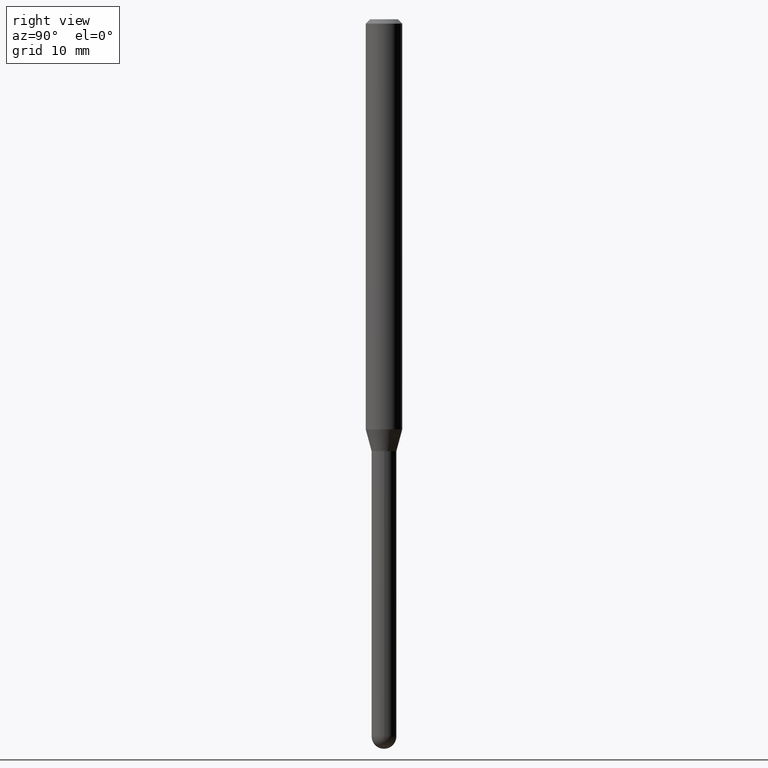
[diagram: clean part render]
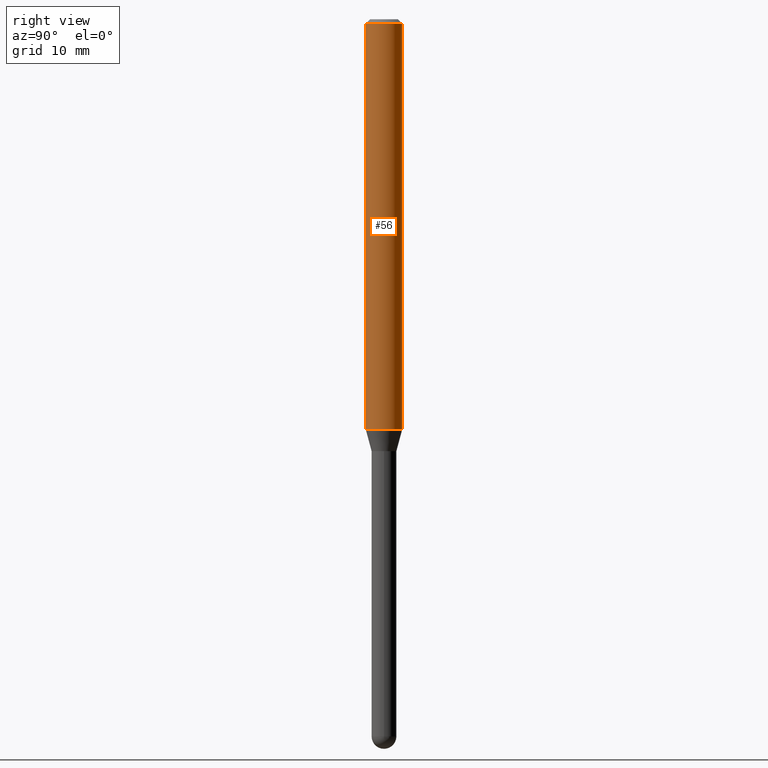
[diagram: same view with one face highlighted and labeled with its STEP entity id]
A machine part, right view. The second image highlights one B-rep face of the part: STEP entity #56.
In plain terms, the highlighted cylindrical surface (edge-blend (fillet) strip) has radius 1.5875 mm, axis along (-0, 0, 1).
Its self-contained STEP definition (entity closure, byte-faithful):
#19 = DIRECTION ( 'NONE',  ( -2.445365064724350852E-29, 3.491629902519587730E-15, 1.000000000000000000 ) ) ;
#34 = AXIS2_PLACEMENT_3D ( 'NONE', #233, #436, #512 ) ;
#37 = CARTESIAN_POINT ( 'NONE',  ( 4.440892098500972274E-16, 0.06249999999999995143, -0.01500000000000028394 ) ) ;
#53 = AXIS2_PLACEMENT_3D ( 'NONE', #358, #118, #474 ) ;
#56 = ADVANCED_FACE ( 'NONE', ( #366 ), #238, .T. ) ;
#64 = VERTEX_POINT ( 'NONE', #318 ) ;
#71 = VECTOR ( 'NONE', #116, 39.37007874015748143 ) ;
#72 = CARTESIAN_POINT ( 'NONE',  ( -4.364351673553916201E-16, -0.06250000000000000000, 2.182268689074742331E-16 ) ) ;
#73 = VERTEX_POINT ( 'NONE', #37 ) ;
#116 = DIRECTION ( 'NONE',  ( -2.445365064724350852E-29, 3.491629902519587730E-15, 1.000000000000000000 ) ) ;
#118 = DIRECTION ( 'NONE',  ( -2.445365064724351132E-29, 3.491629902519587730E-15, 1.000000000000000000 ) ) ;
#125 = CARTESIAN_POINT ( 'NONE',  ( -4.364351673553569595E-16, -0.06250000000000487110, -1.405358983848625565 ) ) ;
#182 = VERTEX_POINT ( 'NONE', #412 ) ;
#183 = CARTESIAN_POINT ( 'NONE',  ( 3.668047597086542918E-31, -5.237444853779404496E-17, -0.01500000000000006710 ) ) ;
#187 = ORIENTED_EDGE ( 'NONE', *, *, #339, .F. ) ;
#213 = EDGE_CURVE ( 'NONE', #182, #73, #376, .T. ) ;
#221 = ORIENTED_EDGE ( 'NONE', *, *, #370, .F. ) ;
#233 = CARTESIAN_POINT ( 'NONE',  ( 0.000000000000000000, 0.000000000000000000, 0.000000000000000000 ) ) ;
#238 = CYLINDRICAL_SURFACE ( 'NONE', #34, 0.06250000000000000000 ) ;
#244 = CIRCLE ( 'NONE', #430, 0.06250000000000000000 ) ;
#307 = ORIENTED_EDGE ( 'NONE', *, *, #213, .T. ) ;
#312 = ORIENTED_EDGE ( 'NONE', *, *, #496, .T. ) ;
#318 = CARTESIAN_POINT ( 'NONE',  ( -4.364351673553912750E-16, -0.06250000000000005551, -0.01499999999999984852 ) ) ;
#339 = EDGE_CURVE ( 'NONE', #64, #73, #244, .T. ) ;
#346 = DIRECTION ( 'NONE',  ( -6.982962677686265922E-15, -1.000000000000000000, 3.483106191921935554E-15 ) ) ;
#358 = CARTESIAN_POINT ( 'NONE',  ( 3.436615762499943104E-29, -4.906993451780404491E-15, -1.405358983848625787 ) ) ;
#366 = FACE_OUTER_BOUND ( 'NONE', #509, .T. ) ;
#370 = EDGE_CURVE ( 'NONE', #503, #64, #390, .T. ) ;
#376 = LINE ( 'NONE', #459, #379 ) ;
#379 = VECTOR ( 'NONE', #19, 39.37007874015748143 ) ;
#390 = LINE ( 'NONE', #72, #71 ) ;
#412 = CARTESIAN_POINT ( 'NONE',  ( 4.440892098500971288E-16, 0.06249999999999512196, -1.405358983848626009 ) ) ;
#430 = AXIS2_PLACEMENT_3D ( 'NONE', #183, #466, #346 ) ;
#436 = DIRECTION ( 'NONE',  ( -2.445365064724351132E-29, 3.491629902519587730E-15, 1.000000000000000000 ) ) ;
#459 = CARTESIAN_POINT ( 'NONE',  ( 4.440892098500625669E-16, 0.06250000000000000000, -2.182268689074742331E-16 ) ) ;
#466 = DIRECTION ( 'NONE',  ( -2.445365064724351132E-29, 3.491629902519587730E-15, 1.000000000000000000 ) ) ;
#474 = DIRECTION ( 'NONE',  ( -6.982962677686265922E-15, -1.000000000000000000, 4.370956789862821150E-15 ) ) ;
#478 = CIRCLE ( 'NONE', #53, 0.06250000000000000000 ) ;
#496 = EDGE_CURVE ( 'NONE', #503, #182, #478, .T. ) ;
#503 = VERTEX_POINT ( 'NONE', #125 ) ;
#509 = EDGE_LOOP ( 'NONE', ( #312, #307, #187, #221 ) ) ;
#512 = DIRECTION ( 'NONE',  ( -6.982962677686265922E-15, -1.000000000000000000, 3.491629902519587730E-15 ) ) ;